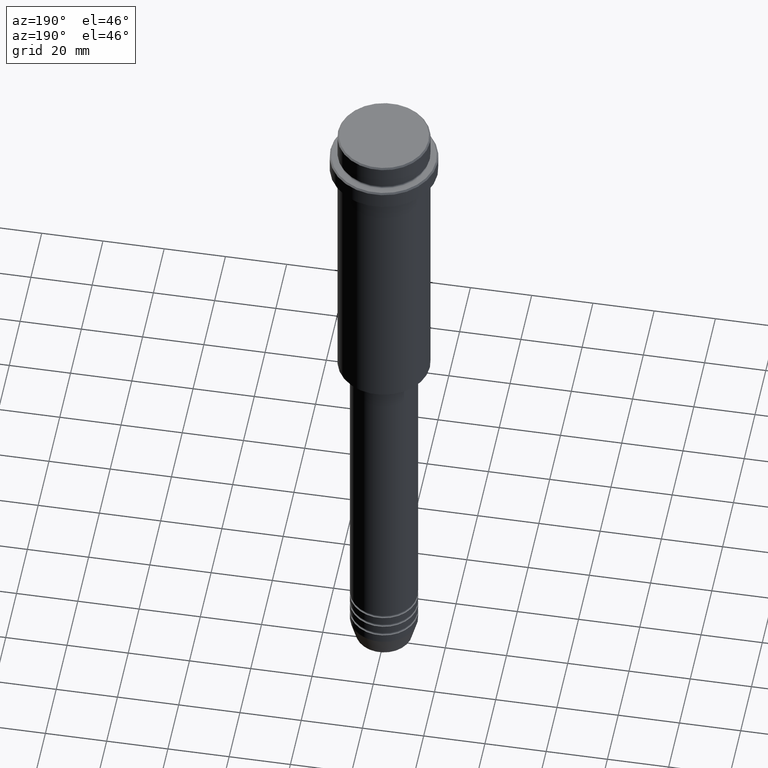
[diagram: clean part render]
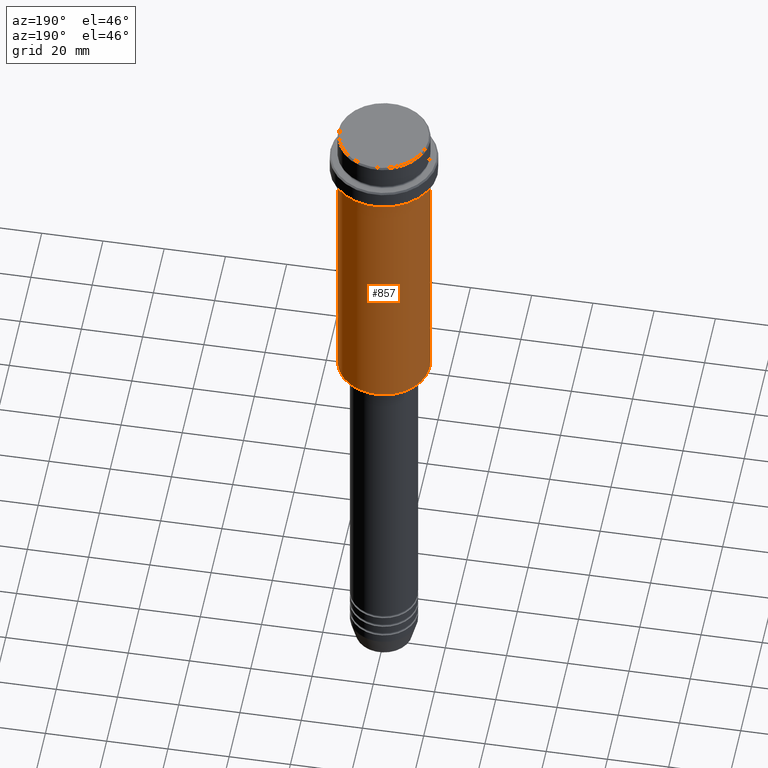
[diagram: same view with one face highlighted and labeled with its STEP entity id]
A machine part, auxiliary view. The second image highlights one B-rep face of the part: STEP entity #857.
In plain terms, the highlighted cylindrical surface (partial cylindrical patch) has radius 15 mm, axis along (-0, -0, 1).
Its self-contained STEP definition (entity closure, byte-faithful):
#29 = CIRCLE ( 'NONE', #1220, 15.00000000000000000 ) ;
#153 = EDGE_CURVE ( 'NONE', #1099, #414, #1044, .T. ) ;
#193 = EDGE_CURVE ( 'NONE', #341, #1099, #664, .T. ) ;
#210 = LINE ( 'NONE', #314, #1366 ) ;
#260 = CARTESIAN_POINT ( 'NONE',  ( 0.000000000000000000, 0.000000000000000000, -104.4999999999999432 ) ) ;
#314 = CARTESIAN_POINT ( 'NONE',  ( -15.00000000000000000, 1.836970198721029589E-15, 0.000000000000000000 ) ) ;
#322 = EDGE_CURVE ( 'NONE', #341, #996, #29, .T. ) ;
#341 = VERTEX_POINT ( 'NONE', #1037 ) ;
#375 = AXIS2_PLACEMENT_3D ( 'NONE', #847, #1068, #1171 ) ;
#388 = DIRECTION ( 'NONE',  ( -1.000000000000000000, 0.000000000000000000, 0.000000000000000000 ) ) ;
#414 = VERTEX_POINT ( 'NONE', #1049 ) ;
#453 = ORIENTED_EDGE ( 'NONE', *, *, #322, .T. ) ;
#547 = DIRECTION ( 'NONE',  ( -0.000000000000000000, -0.000000000000000000, 1.000000000000000000 ) ) ;
#664 = LINE ( 'NONE', #682, #1402 ) ;
#682 = CARTESIAN_POINT ( 'NONE',  ( 15.00000000000000000, 0.000000000000000000, 0.000000000000000000 ) ) ;
#697 = EDGE_LOOP ( 'NONE', ( #453, #900, #802, #875 ) ) ;
#801 = DIRECTION ( 'NONE',  ( 1.000000000000000000, 0.000000000000000000, 0.000000000000000000 ) ) ;
#802 = ORIENTED_EDGE ( 'NONE', *, *, #153, .F. ) ;
#847 = CARTESIAN_POINT ( 'NONE',  ( 0.000000000000000000, 0.000000000000000000, 0.000000000000000000 ) ) ;
#857 = ADVANCED_FACE ( 'NONE', ( #1277 ), #1379, .T. ) ;
#872 = CARTESIAN_POINT ( 'NONE',  ( -15.00000000000000000, 1.836970198721029589E-15, -104.4999999999999432 ) ) ;
#875 = ORIENTED_EDGE ( 'NONE', *, *, #193, .F. ) ;
#900 = ORIENTED_EDGE ( 'NONE', *, *, #980, .T. ) ;
#921 = DIRECTION ( 'NONE',  ( -0.000000000000000000, -0.000000000000000000, 1.000000000000000000 ) ) ;
#930 = CARTESIAN_POINT ( 'NONE',  ( 15.00000000000000178, 0.000000000000000000, -16.00000000000000000 ) ) ;
#980 = EDGE_CURVE ( 'NONE', #996, #414, #210, .T. ) ;
#982 = DIRECTION ( 'NONE',  ( -0.000000000000000000, -0.000000000000000000, 1.000000000000000000 ) ) ;
#996 = VERTEX_POINT ( 'NONE', #872 ) ;
#1037 = CARTESIAN_POINT ( 'NONE',  ( 15.00000000000000000, 0.000000000000000000, -104.4999999999999432 ) ) ;
#1044 = CIRCLE ( 'NONE', #1287, 15.00000000000000178 ) ;
#1049 = CARTESIAN_POINT ( 'NONE',  ( -15.00000000000000355, 1.836970198721029983E-15, -16.00000000000000000 ) ) ;
#1068 = DIRECTION ( 'NONE',  ( -0.000000000000000000, -0.000000000000000000, 1.000000000000000000 ) ) ;
#1099 = VERTEX_POINT ( 'NONE', #930 ) ;
#1103 = CARTESIAN_POINT ( 'NONE',  ( 0.000000000000000000, 0.000000000000000000, -16.00000000000000000 ) ) ;
#1171 = DIRECTION ( 'NONE',  ( 1.000000000000000000, 0.000000000000000000, 0.000000000000000000 ) ) ;
#1201 = DIRECTION ( 'NONE',  ( -0.000000000000000000, -0.000000000000000000, 1.000000000000000000 ) ) ;
#1220 = AXIS2_PLACEMENT_3D ( 'NONE', #260, #921, #388 ) ;
#1277 = FACE_OUTER_BOUND ( 'NONE', #697, .T. ) ;
#1287 = AXIS2_PLACEMENT_3D ( 'NONE', #1103, #547, #801 ) ;
#1366 = VECTOR ( 'NONE', #982, 1000.000000000000000 ) ;
#1379 = CYLINDRICAL_SURFACE ( 'NONE', #375, 15.00000000000000000 ) ;
#1402 = VECTOR ( 'NONE', #1201, 1000.000000000000000 ) ;